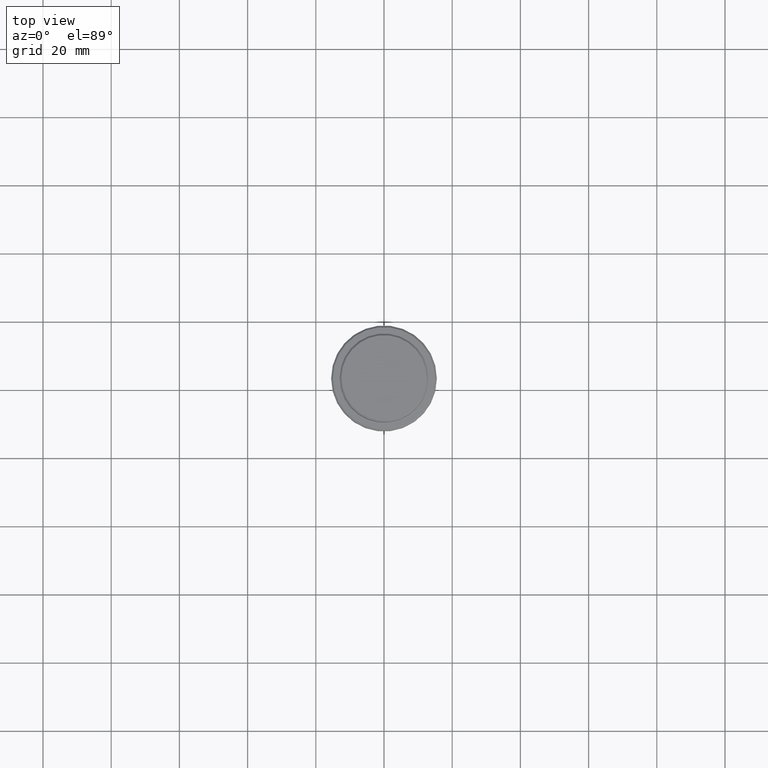
[diagram: clean part render]
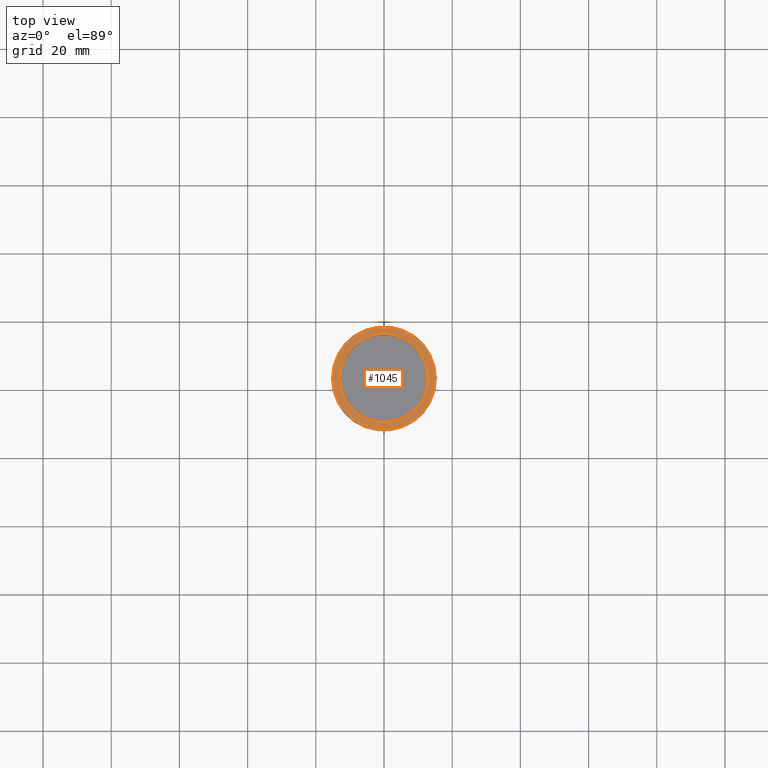
[diagram: same view with one face highlighted and labeled with its STEP entity id]
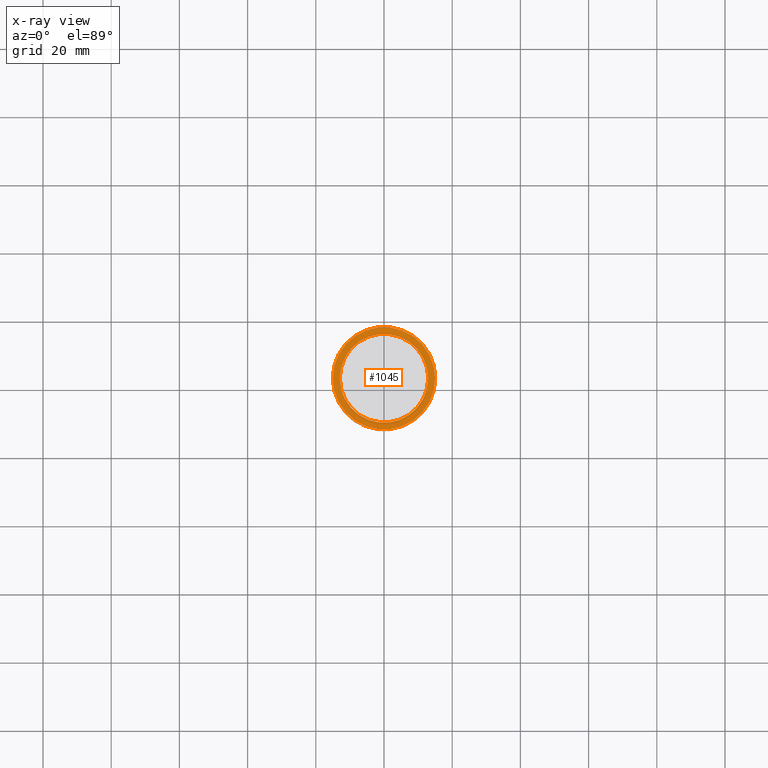
[diagram: x-ray of the same camera — body ghosted, the highlighted face saturated]
A machine part, top view. The second image highlights one B-rep face of the part: STEP entity #1045.
The next image is the same camera in x-ray: the body ghosted, the highlighted face saturated — about 0% of this face is hidden behind the body in this view.
In plain terms, the highlighted planar face has unit normal (0, -0, 1).
Its self-contained STEP definition (entity closure, byte-faithful):
#26 = CIRCLE ( 'NONE', #1091, 12.99999999999999467 ) ;
#28 = AXIS2_PLACEMENT_3D ( 'NONE', #465, #242, #591 ) ;
#104 = ORIENTED_EDGE ( 'NONE', *, *, #847, .T. ) ;
#112 = DIRECTION ( 'NONE',  ( 1.000000000000000000, 0.000000000000000000, 0.000000000000000000 ) ) ;
#141 = ORIENTED_EDGE ( 'NONE', *, *, #897, .T. ) ;
#184 = CARTESIAN_POINT ( 'NONE',  ( -14.99999999999998579, 0.000000000000000000, -9.000000000000000000 ) ) ;
#229 = VERTEX_POINT ( 'NONE', #296 ) ;
#232 = DIRECTION ( 'NONE',  ( 1.000000000000000000, 0.000000000000000000, 0.000000000000000000 ) ) ;
#242 = DIRECTION ( 'NONE',  ( -0.000000000000000000, -0.000000000000000000, 1.000000000000000000 ) ) ;
#250 = FACE_OUTER_BOUND ( 'NONE', #395, .T. ) ;
#260 = AXIS2_PLACEMENT_3D ( 'NONE', #1416, #534, #112 ) ;
#296 = CARTESIAN_POINT ( 'NONE',  ( 12.99999999999999467, 0.000000000000000000, -9.000000000000000000 ) ) ;
#332 = EDGE_LOOP ( 'NONE', ( #844, #141 ) ) ;
#352 = DIRECTION ( 'NONE',  ( 1.000000000000000000, 0.000000000000000000, 0.000000000000000000 ) ) ;
#395 = EDGE_LOOP ( 'NONE', ( #104, #852 ) ) ;
#427 = AXIS2_PLACEMENT_3D ( 'NONE', #569, #1218, #232 ) ;
#448 = CARTESIAN_POINT ( 'NONE',  ( 0.000000000000000000, 0.000000000000000000, -9.000000000000000000 ) ) ;
#465 = CARTESIAN_POINT ( 'NONE',  ( 0.000000000000000000, 0.000000000000000000, -9.000000000000000000 ) ) ;
#534 = DIRECTION ( 'NONE',  ( -0.000000000000000000, -0.000000000000000000, 1.000000000000000000 ) ) ;
#569 = CARTESIAN_POINT ( 'NONE',  ( 0.000000000000000000, 12.49999999999999289, -9.000000000000000000 ) ) ;
#591 = DIRECTION ( 'NONE',  ( 1.000000000000000000, 0.000000000000000000, 0.000000000000000000 ) ) ;
#596 = EDGE_CURVE ( 'NONE', #229, #736, #26, .T. ) ;
#673 = DIRECTION ( 'NONE',  ( 0.000000000000000000, 0.000000000000000000, -1.000000000000000000 ) ) ;
#700 = AXIS2_PLACEMENT_3D ( 'NONE', #448, #962, #1310 ) ;
#714 = CARTESIAN_POINT ( 'NONE',  ( -12.99999999999999467, 1.592040838891558504E-15, -9.000000000000000000 ) ) ;
#718 = VERTEX_POINT ( 'NONE', #184 ) ;
#736 = VERTEX_POINT ( 'NONE', #714 ) ;
#779 = FACE_BOUND ( 'NONE', #332, .T. ) ;
#844 = ORIENTED_EDGE ( 'NONE', *, *, #596, .T. ) ;
#847 = EDGE_CURVE ( 'NONE', #718, #1154, #1204, .T. ) ;
#852 = ORIENTED_EDGE ( 'NONE', *, *, #961, .T. ) ;
#897 = EDGE_CURVE ( 'NONE', #736, #229, #1401, .T. ) ;
#961 = EDGE_CURVE ( 'NONE', #1154, #718, #996, .T. ) ;
#962 = DIRECTION ( 'NONE',  ( 0.000000000000000000, 0.000000000000000000, -1.000000000000000000 ) ) ;
#996 = CIRCLE ( 'NONE', #28, 14.99999999999998579 ) ;
#1002 = PLANE ( 'NONE',  #427 ) ;
#1045 = ADVANCED_FACE ( 'NONE', ( #250, #779 ), #1002, .T. ) ;
#1091 = AXIS2_PLACEMENT_3D ( 'NONE', #1114, #673, #352 ) ;
#1114 = CARTESIAN_POINT ( 'NONE',  ( 0.000000000000000000, 0.000000000000000000, -9.000000000000000000 ) ) ;
#1154 = VERTEX_POINT ( 'NONE', #1167 ) ;
#1167 = CARTESIAN_POINT ( 'NONE',  ( 14.99999999999998579, 1.867586368699712587E-15, -9.000000000000000000 ) ) ;
#1204 = CIRCLE ( 'NONE', #260, 14.99999999999998579 ) ;
#1218 = DIRECTION ( 'NONE',  ( 0.000000000000000000, -0.000000000000000000, 1.000000000000000000 ) ) ;
#1310 = DIRECTION ( 'NONE',  ( 1.000000000000000000, 0.000000000000000000, 0.000000000000000000 ) ) ;
#1401 = CIRCLE ( 'NONE', #700, 12.99999999999999467 ) ;
#1416 = CARTESIAN_POINT ( 'NONE',  ( 0.000000000000000000, 0.000000000000000000, -9.000000000000000000 ) ) ;